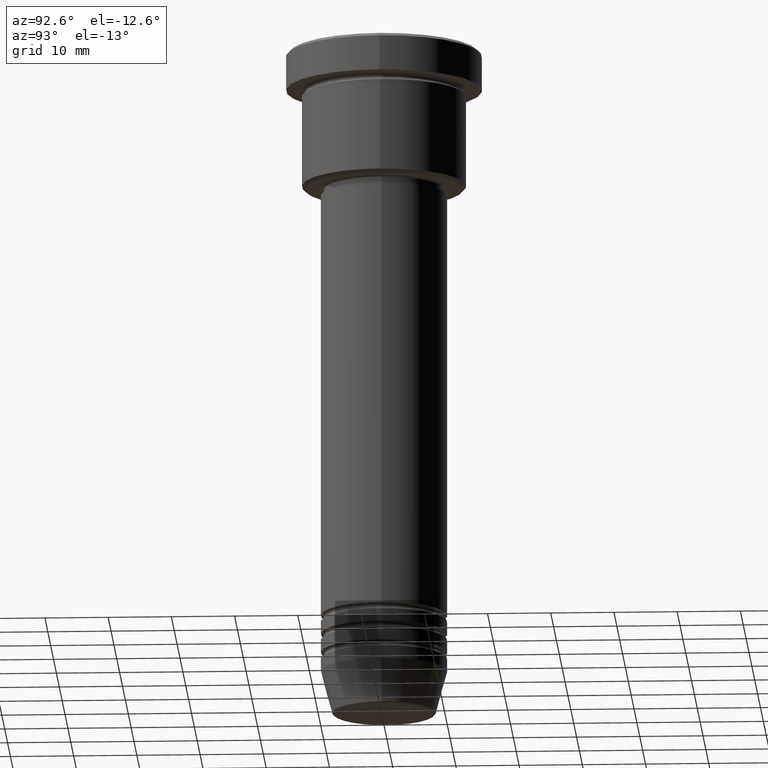
[diagram: clean part render]
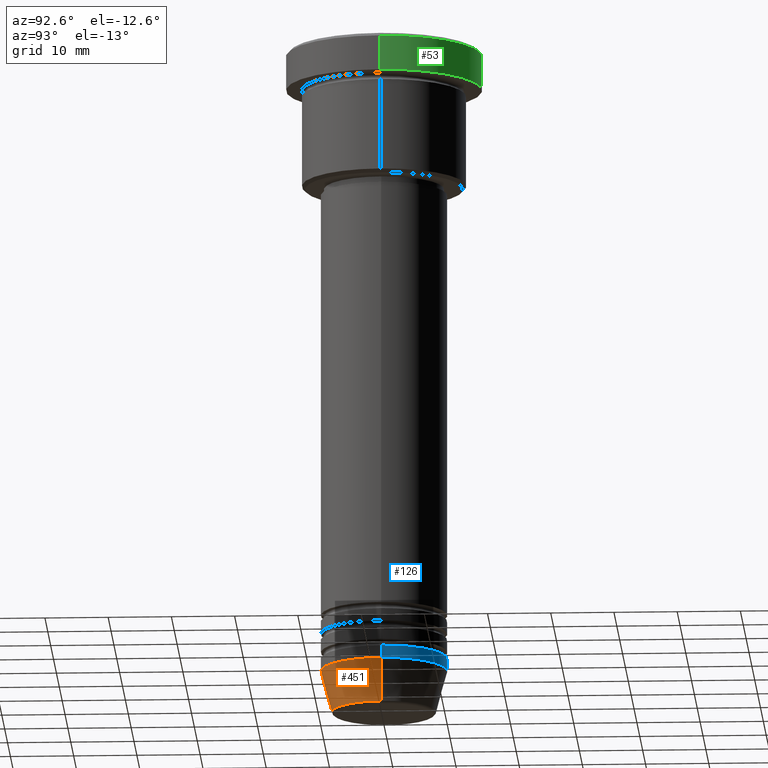
[diagram: same view with three faces highlighted in distinct colors, each labeled with its STEP entity id]
A machine part, auxiliary view with three faces highlighted in distinct colors.
Their STEP definitions:

[orange] entity #451 — the highlighted conical surface has half-angle 15 deg.
#12 = AXIS2_PLACEMENT_3D ( 'NONE', #901, #334, #1166 ) ;
#86 = CARTESIAN_POINT ( 'NONE',  ( -10.00000000000000000, 1.224646799147353256E-15, -100.0000000000000000 ) ) ;
#127 = FACE_OUTER_BOUND ( 'NONE', #1161, .T. ) ;
#152 = ORIENTED_EDGE ( 'NONE', *, *, #739, .F. ) ;
#188 = CARTESIAN_POINT ( 'NONE',  ( -10.00000000000000000, 1.224646799147353256E-15, -100.0000000000000000 ) ) ;
#198 = EDGE_CURVE ( 'NONE', #284, #207, #1167, .T. ) ;
#207 = VERTEX_POINT ( 'NONE', #86 ) ;
#227 = DIRECTION ( 'NONE',  ( 1.000000000000000000, 0.000000000000000000, 0.000000000000000000 ) ) ;
#284 = VERTEX_POINT ( 'NONE', #979 ) ;
#307 = VECTOR ( 'NONE', #1180, 1000.000000000000000 ) ;
#334 = DIRECTION ( 'NONE',  ( -0.000000000000000000, -0.000000000000000000, 1.000000000000000000 ) ) ;
#356 = LINE ( 'NONE', #524, #307 ) ;
#380 = CONICAL_SURFACE ( 'NONE', #534, 10.00000000000000000, 0.2617993877991500740 ) ;
#418 = ORIENTED_EDGE ( 'NONE', *, *, #673, .T. ) ;
#425 = VERTEX_POINT ( 'NONE', #736 ) ;
#451 = ADVANCED_FACE ( 'NONE', ( #127 ), #380, .T. ) ;
#481 = DIRECTION ( 'NONE',  ( -0.000000000000000000, -0.000000000000000000, 1.000000000000000000 ) ) ;
#524 = CARTESIAN_POINT ( 'NONE',  ( 10.00000000000000000, 0.000000000000000000, -100.0000000000000000 ) ) ;
#534 = AXIS2_PLACEMENT_3D ( 'NONE', #953, #872, #227 ) ;
#598 = CIRCLE ( 'NONE', #678, 8.223655072137191269 ) ;
#601 = CARTESIAN_POINT ( 'NONE',  ( 0.000000000000000000, 0.000000000000000000, -106.6294095225512564 ) ) ;
#626 = CARTESIAN_POINT ( 'NONE',  ( 8.223655072137191269, 0.000000000000000000, -106.6294095225512564 ) ) ;
#640 = VERTEX_POINT ( 'NONE', #626 ) ;
#673 = EDGE_CURVE ( 'NONE', #640, #425, #356, .T. ) ;
#678 = AXIS2_PLACEMENT_3D ( 'NONE', #601, #481, #851 ) ;
#736 = CARTESIAN_POINT ( 'NONE',  ( 10.00000000000000000, 0.000000000000000000, -100.0000000000000000 ) ) ;
#739 = EDGE_CURVE ( 'NONE', #207, #425, #1080, .T. ) ;
#819 = DIRECTION ( 'NONE',  ( -0.2588190451025213501, 3.169619151431772337E-17, 0.9659258262890680902 ) ) ;
#851 = DIRECTION ( 'NONE',  ( 1.000000000000000000, 0.000000000000000000, 0.000000000000000000 ) ) ;
#872 = DIRECTION ( 'NONE',  ( -0.000000000000000000, -0.000000000000000000, 1.000000000000000000 ) ) ;
#901 = CARTESIAN_POINT ( 'NONE',  ( 0.000000000000000000, 0.000000000000000000, -100.0000000000000000 ) ) ;
#920 = EDGE_CURVE ( 'NONE', #284, #640, #598, .T. ) ;
#953 = CARTESIAN_POINT ( 'NONE',  ( 0.000000000000000000, 0.000000000000000000, -100.0000000000000000 ) ) ;
#979 = CARTESIAN_POINT ( 'NONE',  ( -8.223655072137191269, 1.115877042642912054E-15, -106.6294095225512564 ) ) ;
#1016 = ORIENTED_EDGE ( 'NONE', *, *, #198, .F. ) ;
#1053 = VECTOR ( 'NONE', #819, 1000.000000000000000 ) ;
#1055 = ORIENTED_EDGE ( 'NONE', *, *, #920, .T. ) ;
#1080 = CIRCLE ( 'NONE', #12, 10.00000000000000000 ) ;
#1161 = EDGE_LOOP ( 'NONE', ( #1016, #1055, #418, #152 ) ) ;
#1166 = DIRECTION ( 'NONE',  ( 1.000000000000000000, 0.000000000000000000, 0.000000000000000000 ) ) ;
#1167 = LINE ( 'NONE', #188, #1053 ) ;
#1180 = DIRECTION ( 'NONE',  ( 0.2588190451025213501, 0.000000000000000000, 0.9659258262890680902 ) ) ;

[blue] entity #126 — the highlighted cylindrical surface (partial cylindrical patch) has radius 10 mm, axis along (-0, -0, 1).
#73 = LINE ( 'NONE', #91, #862 ) ;
#85 = CIRCLE ( 'NONE', #1154, 10.00000000000000000 ) ;
#86 = CARTESIAN_POINT ( 'NONE',  ( -10.00000000000000000, 1.224646799147353256E-15, -100.0000000000000000 ) ) ;
#91 = CARTESIAN_POINT ( 'NONE',  ( 10.00000000000000000, 0.000000000000000000, 0.000000000000000000 ) ) ;
#113 = DIRECTION ( 'NONE',  ( -0.000000000000000000, -0.000000000000000000, 1.000000000000000000 ) ) ;
#117 = CARTESIAN_POINT ( 'NONE',  ( -10.00000000000000000, 1.224646799147353256E-15, 0.000000000000000000 ) ) ;
#126 = ADVANCED_FACE ( 'NONE', ( #887 ), #223, .T. ) ;
#207 = VERTEX_POINT ( 'NONE', #86 ) ;
#223 = CYLINDRICAL_SURFACE ( 'NONE', #922, 10.00000000000000000 ) ;
#276 = VECTOR ( 'NONE', #931, 1000.000000000000000 ) ;
#297 = ORIENTED_EDGE ( 'NONE', *, *, #621, .F. ) ;
#315 = CARTESIAN_POINT ( 'NONE',  ( 0.000000000000000000, 0.000000000000000000, -100.0000000000000000 ) ) ;
#321 = CARTESIAN_POINT ( 'NONE',  ( 10.00000000000000000, 0.000000000000000000, -98.00000000000000000 ) ) ;
#352 = EDGE_CURVE ( 'NONE', #538, #388, #827, .T. ) ;
#387 = DIRECTION ( 'NONE',  ( 1.000000000000000000, 0.000000000000000000, 0.000000000000000000 ) ) ;
#388 = VERTEX_POINT ( 'NONE', #1026 ) ;
#397 = DIRECTION ( 'NONE',  ( 1.000000000000000000, 0.000000000000000000, 0.000000000000000000 ) ) ;
#425 = VERTEX_POINT ( 'NONE', #736 ) ;
#538 = VERTEX_POINT ( 'NONE', #321 ) ;
#564 = LINE ( 'NONE', #117, #276 ) ;
#621 = EDGE_CURVE ( 'NONE', #425, #538, #73, .T. ) ;
#627 = ORIENTED_EDGE ( 'NONE', *, *, #352, .F. ) ;
#684 = ORIENTED_EDGE ( 'NONE', *, *, #934, .T. ) ;
#736 = CARTESIAN_POINT ( 'NONE',  ( 10.00000000000000000, 0.000000000000000000, -100.0000000000000000 ) ) ;
#759 = DIRECTION ( 'NONE',  ( -0.000000000000000000, -0.000000000000000000, 1.000000000000000000 ) ) ;
#781 = DIRECTION ( 'NONE',  ( 1.000000000000000000, 0.000000000000000000, 0.000000000000000000 ) ) ;
#827 = CIRCLE ( 'NONE', #961, 10.00000000000000000 ) ;
#846 = EDGE_CURVE ( 'NONE', #207, #388, #564, .T. ) ;
#857 = DIRECTION ( 'NONE',  ( -0.000000000000000000, -0.000000000000000000, 1.000000000000000000 ) ) ;
#862 = VECTOR ( 'NONE', #997, 1000.000000000000000 ) ;
#887 = FACE_OUTER_BOUND ( 'NONE', #1023, .T. ) ;
#922 = AXIS2_PLACEMENT_3D ( 'NONE', #950, #857, #397 ) ;
#931 = DIRECTION ( 'NONE',  ( -0.000000000000000000, -0.000000000000000000, 1.000000000000000000 ) ) ;
#934 = EDGE_CURVE ( 'NONE', #425, #207, #85, .T. ) ;
#950 = CARTESIAN_POINT ( 'NONE',  ( 0.000000000000000000, 0.000000000000000000, 0.000000000000000000 ) ) ;
#961 = AXIS2_PLACEMENT_3D ( 'NONE', #1115, #113, #387 ) ;
#997 = DIRECTION ( 'NONE',  ( -0.000000000000000000, -0.000000000000000000, 1.000000000000000000 ) ) ;
#1023 = EDGE_LOOP ( 'NONE', ( #684, #1097, #627, #297 ) ) ;
#1026 = CARTESIAN_POINT ( 'NONE',  ( -10.00000000000000000, 1.224646799147353256E-15, -98.00000000000000000 ) ) ;
#1097 = ORIENTED_EDGE ( 'NONE', *, *, #846, .T. ) ;
#1115 = CARTESIAN_POINT ( 'NONE',  ( 0.000000000000000000, 0.000000000000000000, -98.00000000000000000 ) ) ;
#1154 = AXIS2_PLACEMENT_3D ( 'NONE', #315, #759, #781 ) ;

[green] entity #53 — the highlighted cylindrical surface (partial cylindrical patch) has radius 15.5 mm, axis along (-0, -0, 1).
#20 = VERTEX_POINT ( 'NONE', #661 ) ;
#43 = CYLINDRICAL_SURFACE ( 'NONE', #763, 15.50000000000000000 ) ;
#50 = DIRECTION ( 'NONE',  ( 1.000000000000000000, 0.000000000000000000, 0.000000000000000000 ) ) ;
#53 = ADVANCED_FACE ( 'NONE', ( #873 ), #43, .T. ) ;
#62 = DIRECTION ( 'NONE',  ( -0.000000000000000000, -0.000000000000000000, 1.000000000000000000 ) ) ;
#118 = ORIENTED_EDGE ( 'NONE', *, *, #520, .T. ) ;
#135 = DIRECTION ( 'NONE',  ( -0.000000000000000000, -0.000000000000000000, 1.000000000000000000 ) ) ;
#179 = AXIS2_PLACEMENT_3D ( 'NONE', #1065, #135, #50 ) ;
#228 = DIRECTION ( 'NONE',  ( 1.000000000000000000, 0.000000000000000000, 0.000000000000000000 ) ) ;
#243 = EDGE_LOOP ( 'NONE', ( #929, #854, #118, #412 ) ) ;
#295 = CARTESIAN_POINT ( 'NONE',  ( 15.50000000000000000, 0.000000000000000000, -0.4999999999999709677 ) ) ;
#364 = VECTOR ( 'NONE', #741, 1000.000000000000000 ) ;
#386 = EDGE_CURVE ( 'NONE', #1124, #20, #1123, .T. ) ;
#391 = VERTEX_POINT ( 'NONE', #295 ) ;
#412 = ORIENTED_EDGE ( 'NONE', *, *, #1068, .F. ) ;
#421 = VECTOR ( 'NONE', #810, 1000.000000000000000 ) ;
#424 = CARTESIAN_POINT ( 'NONE',  ( 0.000000000000000000, 0.000000000000000000, 0.000000000000000000 ) ) ;
#499 = CARTESIAN_POINT ( 'NONE',  ( 0.000000000000000000, 0.000000000000000000, -0.4999999999999709677 ) ) ;
#513 = CIRCLE ( 'NONE', #179, 15.50000000000000000 ) ;
#520 = EDGE_CURVE ( 'NONE', #20, #391, #1034, .T. ) ;
#535 = LINE ( 'NONE', #1090, #421 ) ;
#574 = EDGE_CURVE ( 'NONE', #1108, #1124, #513, .T. ) ;
#593 = DIRECTION ( 'NONE',  ( 1.000000000000000000, 0.000000000000000000, 0.000000000000000000 ) ) ;
#661 = CARTESIAN_POINT ( 'NONE',  ( -15.50000000000000000, 1.898202538678397557E-15, -0.4999999999999709677 ) ) ;
#705 = CARTESIAN_POINT ( 'NONE',  ( -15.50000000000000000, 1.898202538678397557E-15, -5.999999999999995559 ) ) ;
#732 = AXIS2_PLACEMENT_3D ( 'NONE', #499, #1153, #593 ) ;
#741 = DIRECTION ( 'NONE',  ( -0.000000000000000000, -0.000000000000000000, 1.000000000000000000 ) ) ;
#755 = CARTESIAN_POINT ( 'NONE',  ( -15.50000000000000000, 1.898202538678397557E-15, 0.000000000000000000 ) ) ;
#763 = AXIS2_PLACEMENT_3D ( 'NONE', #424, #62, #228 ) ;
#810 = DIRECTION ( 'NONE',  ( -0.000000000000000000, -0.000000000000000000, 1.000000000000000000 ) ) ;
#854 = ORIENTED_EDGE ( 'NONE', *, *, #386, .T. ) ;
#873 = FACE_OUTER_BOUND ( 'NONE', #243, .T. ) ;
#900 = CARTESIAN_POINT ( 'NONE',  ( 15.50000000000000000, 0.000000000000000000, -5.999999999999995559 ) ) ;
#929 = ORIENTED_EDGE ( 'NONE', *, *, #574, .T. ) ;
#1034 = CIRCLE ( 'NONE', #732, 15.50000000000000000 ) ;
#1065 = CARTESIAN_POINT ( 'NONE',  ( 0.000000000000000000, 0.000000000000000000, -5.999999999999995559 ) ) ;
#1068 = EDGE_CURVE ( 'NONE', #1108, #391, #535, .T. ) ;
#1090 = CARTESIAN_POINT ( 'NONE',  ( 15.50000000000000000, 0.000000000000000000, 0.000000000000000000 ) ) ;
#1108 = VERTEX_POINT ( 'NONE', #900 ) ;
#1123 = LINE ( 'NONE', #755, #364 ) ;
#1124 = VERTEX_POINT ( 'NONE', #705 ) ;
#1153 = DIRECTION ( 'NONE',  ( 0.000000000000000000, 0.000000000000000000, -1.000000000000000000 ) ) ;